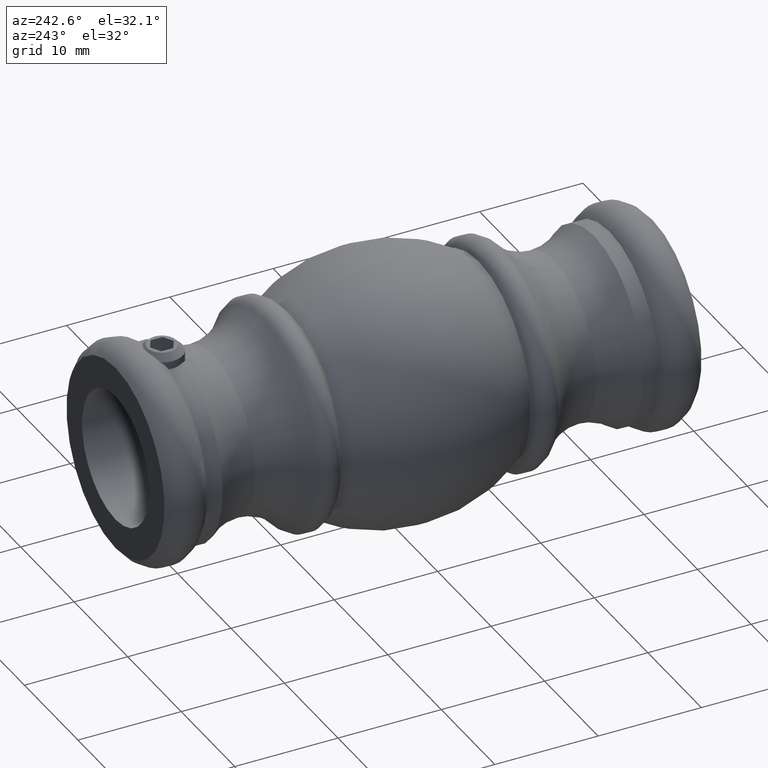
[diagram: clean part render]
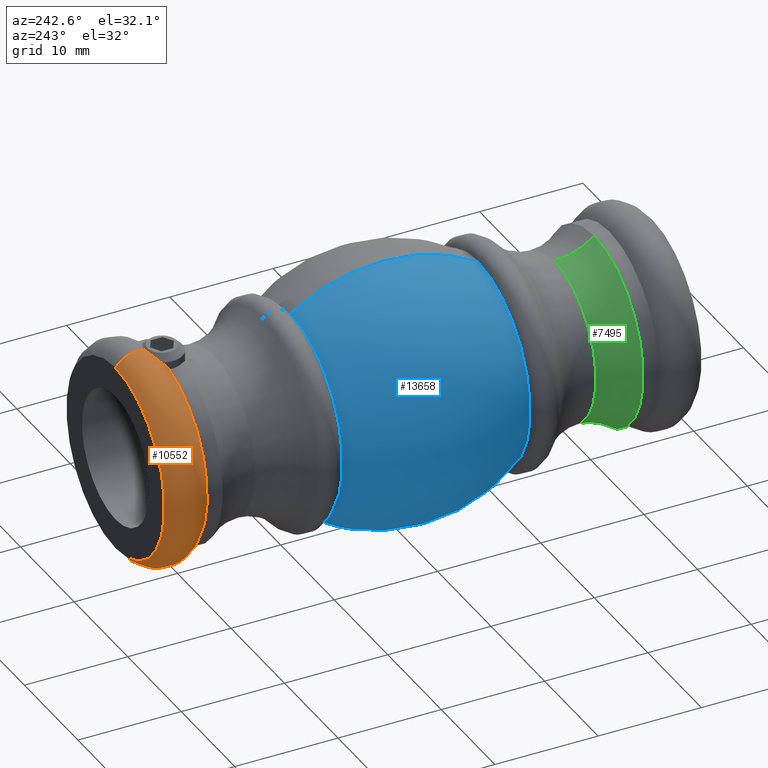
[diagram: same view with three faces highlighted in distinct colors, each labeled with its STEP entity id]
A machine part, auxiliary view with three faces highlighted in distinct colors.
Their STEP definitions:

[orange] entity #10552 — the highlighted toroidal blend (fillet) surface has major radius 7.75 mm and minor (blend) radius 2.5 mm.
#158 = DIRECTION ( 'NONE',  ( -0.000000000000000000, 1.000000000000000000, -0.000000000000000000 ) ) ;
#470 = B_SPLINE_CURVE_WITH_KNOTS ( 'NONE', 3,
 ( #603, #2755, #3880, #558, #6215, #7376, #12888, #8595, #12934, #6313, #13039, #1929 ),
 .UNSPECIFIED., .F., .F.,
 ( 4, 2, 2, 2, 2, 4 ),
 ( 3.657769115314827888E-07, 0.0006481187154108611305, 0.001295871653910190624, 0.001619748123159859762, 0.001943624592409528900, 0.002591377530908866092 ),
 .UNSPECIFIED. ) ;
#558 = CARTESIAN_POINT ( 'NONE',  ( -1.390891976506164252, 22.40268724651248178, 9.640516195403575850 ) ) ;
#603 = CARTESIAN_POINT ( 'NONE',  ( -1.610797106706591375, 21.85753696455840611, 9.007099015833327726 ) ) ;
#952 = CARTESIAN_POINT ( 'NONE',  ( 0.000000000000000000, 23.92876848227920306, 7.750000000000000000 ) ) ;
#1015 = AXIS2_PLACEMENT_3D ( 'NONE', #952, #3144, #3094 ) ;
#1062 = CARTESIAN_POINT ( 'NONE',  ( -4.115869782304869735E-20, 23.14999999999999147, 10.12560932204950959 ) ) ;
#1155 = CIRCLE ( 'NONE', #13123, 9.150000000000000355 ) ;
#1185 = EDGE_CURVE ( 'NONE', #8133, #1998, #9551, .T. ) ;
#1441 = FACE_OUTER_BOUND ( 'NONE', #3279, .T. ) ;
#1522 = EDGE_CURVE ( 'NONE', #10935, #12062, #5928, .T. ) ;
#1929 = CARTESIAN_POINT ( 'NONE',  ( -4.115869782304869735E-20, 23.14999999999999147, 10.12560932204950959 ) ) ;
#1998 = VERTEX_POINT ( 'NONE', #6573 ) ;
#2225 = CARTESIAN_POINT ( 'NONE',  ( 9.491012693391987787E-16, 23.92876848227920306, -7.750000000000000000 ) ) ;
#2755 = CARTESIAN_POINT ( 'NONE',  ( -1.584590059342660950, 21.97560653569011180, 9.189235278742419410 ) ) ;
#3094 = DIRECTION ( 'NONE',  ( 0.000000000000000000, 0.000000000000000000, 1.000000000000000000 ) ) ;
#3144 = DIRECTION ( 'NONE',  ( -1.000000000000000000, 0.000000000000000000, 0.000000000000000000 ) ) ;
#3279 = EDGE_LOOP ( 'NONE', ( #8840, #4939, #3775, #10012, #9299 ) ) ;
#3291 = VERTEX_POINT ( 'NONE', #9532 ) ;
#3348 = DIRECTION ( 'NONE',  ( 1.224646799147353454E-16, 0.000000000000000000, -1.000000000000000000 ) ) ;
#3668 = DIRECTION ( 'NONE',  ( -0.000000000000000000, 1.000000000000000000, -0.000000000000000000 ) ) ;
#3775 = ORIENTED_EDGE ( 'NONE', *, *, #8045, .T. ) ;
#3880 = CARTESIAN_POINT ( 'NONE',  ( -1.541431309632933955, 22.11107632339079387, 9.351865075118666937 ) ) ;
#4167 = AXIS2_PLACEMENT_3D ( 'NONE', #7692, #14370, #4506 ) ;
#4297 = AXIS2_PLACEMENT_3D ( 'NONE', #2225, #14307, #3348 ) ;
#4506 = DIRECTION ( 'NONE',  ( 0.000000000000000000, 0.000000000000000000, 1.000000000000000000 ) ) ;
#4939 = ORIENTED_EDGE ( 'NONE', *, *, #4995, .T. ) ;
#4995 = EDGE_CURVE ( 'NONE', #8133, #3291, #1155, .T. ) ;
#5928 = CIRCLE ( 'NONE', #1015, 2.499999999999998668 ) ;
#6215 = CARTESIAN_POINT ( 'NONE',  ( -1.285069388568652382, 22.55341830163044037, 9.760491960532631239 ) ) ;
#6313 = CARTESIAN_POINT ( 'NONE',  ( -0.4345143387806209567, 23.10587324459420344, 10.10490738233248109 ) ) ;
#6573 = CARTESIAN_POINT ( 'NONE',  ( 1.120551821219828341E-15, 26.00000000000000000, -9.150000000000000355 ) ) ;
#6826 = CARTESIAN_POINT ( 'NONE',  ( 0.000000000000000000, 26.00000000000000000, 0.000000000000000000 ) ) ;
#7376 = CARTESIAN_POINT ( 'NONE',  ( -1.072622760906607464, 22.75762823429526094, 9.902472369373537475 ) ) ;
#7692 = CARTESIAN_POINT ( 'NONE',  ( 0.000000000000000000, 23.92876848227920306, 0.000000000000000000 ) ) ;
#8045 = EDGE_CURVE ( 'NONE', #3291, #10935, #470, .T. ) ;
#8133 = VERTEX_POINT ( 'NONE', #11424 ) ;
#8242 = EDGE_CURVE ( 'NONE', #1998, #12062, #14299, .T. ) ;
#8595 = CARTESIAN_POINT ( 'NONE',  ( -0.8234115222813982449, 22.93353098488181274, 10.01078761576581755 ) ) ;
#8840 = ORIENTED_EDGE ( 'NONE', *, *, #1185, .F. ) ;
#8972 = AXIS2_PLACEMENT_3D ( 'NONE', #6826, #3668, #11515 ) ;
#9299 = ORIENTED_EDGE ( 'NONE', *, *, #8242, .F. ) ;
#9532 = CARTESIAN_POINT ( 'NONE',  ( -1.610797106706591375, 21.85753696455840611, 9.007099015833327726 ) ) ;
#9551 = CIRCLE ( 'NONE', #4297, 2.499999999999998668 ) ;
#9794 = TOROIDAL_SURFACE ( 'NONE', #4167, 7.750000000000000000, 2.499999999999999112 ) ;
#10012 = ORIENTED_EDGE ( 'NONE', *, *, #1522, .T. ) ;
#10342 = CARTESIAN_POINT ( 'NONE',  ( 0.000000000000000000, 26.00000000000000000, 9.150000000000000355 ) ) ;
#10552 = ADVANCED_FACE ( 'NONE', ( #1441 ), #9794, .T. ) ;
#10935 = VERTEX_POINT ( 'NONE', #1062 ) ;
#11364 = CARTESIAN_POINT ( 'NONE',  ( 0.000000000000000000, 21.85753696455840611, 0.000000000000000000 ) ) ;
#11424 = CARTESIAN_POINT ( 'NONE',  ( 1.120551821219828341E-15, 21.85753696455840611, -9.150000000000000355 ) ) ;
#11515 = DIRECTION ( 'NONE',  ( 0.000000000000000000, 0.000000000000000000, 1.000000000000000000 ) ) ;
#12062 = VERTEX_POINT ( 'NONE', #10342 ) ;
#12471 = DIRECTION ( 'NONE',  ( 0.000000000000000000, 0.000000000000000000, 1.000000000000000000 ) ) ;
#12888 = CARTESIAN_POINT ( 'NONE',  ( -0.9945898903956276182, 22.82053344128985017, 9.942574024104409602 ) ) ;
#12934 = CARTESIAN_POINT ( 'NONE',  ( -0.7289692856428927614, 22.98404402821029890, 10.03909488203435885 ) ) ;
#13039 = CARTESIAN_POINT ( 'NONE',  ( -0.2164799268254184728, 23.14999999999998792, 10.12560932204950781 ) ) ;
#13123 = AXIS2_PLACEMENT_3D ( 'NONE', #11364, #158, #12471 ) ;
#14299 = CIRCLE ( 'NONE', #8972, 9.150000000000000355 ) ;
#14307 = DIRECTION ( 'NONE',  ( 1.000000000000000000, 0.000000000000000000, 1.224646799147353207E-16 ) ) ;
#14370 = DIRECTION ( 'NONE',  ( -0.000000000000000000, 1.000000000000000000, -0.000000000000000000 ) ) ;

[blue] entity #13658 — the highlighted toroidal blend (fillet) surface has major radius 3.9734 mm and minor (blend) radius 16.4734 mm.
#71 = AXIS2_PLACEMENT_3D ( 'NONE', #11517, #11563, #4901 ) ;
#523 = CARTESIAN_POINT ( 'NONE',  ( 0.000000000000000000, -9.087668581603962181, 9.766592814193652217 ) ) ;
#1329 = DIRECTION ( 'NONE',  ( -0.000000000000000000, 1.000000000000000000, -0.000000000000000000 ) ) ;
#1349 = EDGE_CURVE ( 'NONE', #5898, #3636, #12756, .T. ) ;
#1383 = CIRCLE ( 'NONE', #71, 16.47343936902745298 ) ;
#1727 = DIRECTION ( 'NONE',  ( 0.000000000000000000, 0.000000000000000000, 1.000000000000000000 ) ) ;
#2021 = ORIENTED_EDGE ( 'NONE', *, *, #1349, .T. ) ;
#2155 = AXIS2_PLACEMENT_3D ( 'NONE', #9588, #7615, #6502 ) ;
#2262 = AXIS2_PLACEMENT_3D ( 'NONE', #9437, #5141, #1727 ) ;
#2323 = CIRCLE ( 'NONE', #2262, 9.766592814193650440 ) ;
#2446 = CARTESIAN_POINT ( 'NONE',  ( 0.000000000000000000, 0.000000000000000000, 0.000000000000000000 ) ) ;
#3158 = VERTEX_POINT ( 'NONE', #3438 ) ;
#3438 = CARTESIAN_POINT ( 'NONE',  ( 0.000000000000000000, 9.087668581603969287, 9.766592814193653993 ) ) ;
#3636 = VERTEX_POINT ( 'NONE', #523 ) ;
#3777 = CARTESIAN_POINT ( 'NONE',  ( 0.000000000000000000, -9.087668581603962181, 0.000000000000000000 ) ) ;
#4507 = ORIENTED_EDGE ( 'NONE', *, *, #7069, .T. ) ;
#4518 = EDGE_LOOP ( 'NONE', ( #10289, #2021, #4507, #10250 ) ) ;
#4901 = DIRECTION ( 'NONE',  ( 1.224646799147353207E-16, 0.000000000000000000, -1.000000000000000000 ) ) ;
#5141 = DIRECTION ( 'NONE',  ( -0.000000000000000000, 1.000000000000000000, -0.000000000000000000 ) ) ;
#5898 = VERTEX_POINT ( 'NONE', #6783 ) ;
#6425 = CARTESIAN_POINT ( 'NONE',  ( 1.196062662847779849E-15, 9.087668581603969287, -9.766592814193653993 ) ) ;
#6502 = DIRECTION ( 'NONE',  ( 0.000000000000000000, 0.000000000000000000, 1.000000000000000000 ) ) ;
#6783 = CARTESIAN_POINT ( 'NONE',  ( 1.196062662847779849E-15, -9.087668581603962181, -9.766592814193652217 ) ) ;
#7069 = EDGE_CURVE ( 'NONE', #3636, #3158, #7912, .T. ) ;
#7615 = DIRECTION ( 'NONE',  ( -1.000000000000000000, 0.000000000000000000, 0.000000000000000000 ) ) ;
#7912 = CIRCLE ( 'NONE', #2155, 16.47343936902745298 ) ;
#8451 = EDGE_CURVE ( 'NONE', #10820, #3158, #2323, .T. ) ;
#9437 = CARTESIAN_POINT ( 'NONE',  ( 0.000000000000000000, 9.087668581603969287, 0.000000000000000000 ) ) ;
#9588 = CARTESIAN_POINT ( 'NONE',  ( 0.000000000000000000, 0.000000000000000000, -3.973439369027452983 ) ) ;
#9928 = FACE_OUTER_BOUND ( 'NONE', #4518, .T. ) ;
#10250 = ORIENTED_EDGE ( 'NONE', *, *, #8451, .F. ) ;
#10289 = ORIENTED_EDGE ( 'NONE', *, *, #13889, .F. ) ;
#10820 = VERTEX_POINT ( 'NONE', #6425 ) ;
#11234 = AXIS2_PLACEMENT_3D ( 'NONE', #3777, #11532, #11582 ) ;
#11330 = DIRECTION ( 'NONE',  ( 0.000000000000000000, 0.000000000000000000, 1.000000000000000000 ) ) ;
#11517 = CARTESIAN_POINT ( 'NONE',  ( -4.866059804885549364E-16, 0.000000000000000000, 3.973439369027452983 ) ) ;
#11532 = DIRECTION ( 'NONE',  ( -0.000000000000000000, 1.000000000000000000, -0.000000000000000000 ) ) ;
#11563 = DIRECTION ( 'NONE',  ( 1.000000000000000000, 0.000000000000000000, 1.224646799147353207E-16 ) ) ;
#11582 = DIRECTION ( 'NONE',  ( 0.000000000000000000, 0.000000000000000000, 1.000000000000000000 ) ) ;
#12063 = AXIS2_PLACEMENT_3D ( 'NONE', #2446, #1329, #11330 ) ;
#12756 = CIRCLE ( 'NONE', #11234, 9.766592814193652217 ) ;
#13658 = ADVANCED_FACE ( 'NONE', ( #9928 ), #13890, .T. ) ;
#13889 = EDGE_CURVE ( 'NONE', #5898, #10820, #1383, .T. ) ;
#13890 = TOROIDAL_SURFACE ( 'NONE', #12063, -3.973439369027452983, 16.47343936902745298 ) ;

[green] entity #7495 — the highlighted toroidal blend (fillet) surface has major radius 13.75 mm and minor (blend) radius 6 mm.
#108 = DIRECTION ( 'NONE',  ( 0.000000000000000000, 0.000000000000000000, 1.000000000000000000 ) ) ;
#1016 = CARTESIAN_POINT ( 'NONE',  ( 1.683889348827610654E-15, -16.50526490770674215, -13.75000000000000000 ) ) ;
#1779 = AXIS2_PLACEMENT_3D ( 'NONE', #9986, #11126, #108 ) ;
#1791 = CARTESIAN_POINT ( 'NONE',  ( 1.120551821219828538E-15, -20.35753696455839190, -9.150000000000002132 ) ) ;
#1795 = VERTEX_POINT ( 'NONE', #12661 ) ;
#2023 = AXIS2_PLACEMENT_3D ( 'NONE', #4152, #7528, #4248 ) ;
#2874 = CARTESIAN_POINT ( 'NONE',  ( 0.000000000000000000, -16.50526490770674215, 0.000000000000000000 ) ) ;
#3756 = VERTEX_POINT ( 'NONE', #9709 ) ;
#3937 = ORIENTED_EDGE ( 'NONE', *, *, #10822, .F. ) ;
#3960 = CIRCLE ( 'NONE', #1779, 9.150000000000002132 ) ;
#4068 = CARTESIAN_POINT ( 'NONE',  ( 0.000000000000000000, -16.50526490770674215, 13.75000000000000000 ) ) ;
#4152 = CARTESIAN_POINT ( 'NONE',  ( 0.000000000000000000, -16.50526490770674215, 0.000000000000000000 ) ) ;
#4248 = DIRECTION ( 'NONE',  ( 0.000000000000000000, 0.000000000000000000, 1.000000000000000000 ) ) ;
#4264 = DIRECTION ( 'NONE',  ( -1.000000000000000000, 0.000000000000000000, 0.000000000000000000 ) ) ;
#4625 = FACE_OUTER_BOUND ( 'NONE', #9520, .T. ) ;
#4823 = EDGE_CURVE ( 'NONE', #10804, #13337, #3960, .T. ) ;
#5126 = DIRECTION ( 'NONE',  ( -0.000000000000000000, 1.000000000000000000, -0.000000000000000000 ) ) ;
#5373 = DIRECTION ( 'NONE',  ( 1.224646799147353454E-16, 0.000000000000000000, -1.000000000000000000 ) ) ;
#5635 = CIRCLE ( 'NONE', #2023, 7.750000000000000000 ) ;
#5733 = ORIENTED_EDGE ( 'NONE', *, *, #6704, .T. ) ;
#5827 = ORIENTED_EDGE ( 'NONE', *, *, #4823, .T. ) ;
#6346 = CIRCLE ( 'NONE', #6636, 6.000000000000000000 ) ;
#6636 = AXIS2_PLACEMENT_3D ( 'NONE', #4068, #4264, #9776 ) ;
#6704 = EDGE_CURVE ( 'NONE', #1795, #10804, #12232, .T. ) ;
#7031 = TOROIDAL_SURFACE ( 'NONE', #11830, 13.75000000000000000, 6.000000000000000000 ) ;
#7184 = CARTESIAN_POINT ( 'NONE',  ( 0.000000000000000000, -20.35753696455839190, 9.150000000000002132 ) ) ;
#7495 = ADVANCED_FACE ( 'NONE', ( #4625 ), #7031, .F. ) ;
#7528 = DIRECTION ( 'NONE',  ( -0.000000000000000000, 1.000000000000000000, -0.000000000000000000 ) ) ;
#7598 = EDGE_CURVE ( 'NONE', #3756, #13337, #6346, .T. ) ;
#8036 = ORIENTED_EDGE ( 'NONE', *, *, #7598, .F. ) ;
#8312 = AXIS2_PLACEMENT_3D ( 'NONE', #1016, #10876, #5373 ) ;
#9520 = EDGE_LOOP ( 'NONE', ( #3937, #5733, #5827, #8036 ) ) ;
#9709 = CARTESIAN_POINT ( 'NONE',  ( 0.000000000000000000, -16.50526490770674215, 7.750000000000000000 ) ) ;
#9776 = DIRECTION ( 'NONE',  ( 0.000000000000000000, 0.000000000000000000, 1.000000000000000000 ) ) ;
#9986 = CARTESIAN_POINT ( 'NONE',  ( 0.000000000000000000, -20.35753696455839190, 0.000000000000000000 ) ) ;
#10804 = VERTEX_POINT ( 'NONE', #1791 ) ;
#10822 = EDGE_CURVE ( 'NONE', #1795, #3756, #5635, .T. ) ;
#10876 = DIRECTION ( 'NONE',  ( 1.000000000000000000, 0.000000000000000000, 1.224646799147353207E-16 ) ) ;
#11126 = DIRECTION ( 'NONE',  ( -0.000000000000000000, 1.000000000000000000, -0.000000000000000000 ) ) ;
#11558 = DIRECTION ( 'NONE',  ( 0.000000000000000000, 0.000000000000000000, 1.000000000000000000 ) ) ;
#11830 = AXIS2_PLACEMENT_3D ( 'NONE', #2874, #5126, #11558 ) ;
#12232 = CIRCLE ( 'NONE', #8312, 6.000000000000000000 ) ;
#12661 = CARTESIAN_POINT ( 'NONE',  ( 9.491012693391985815E-16, -16.50526490770674215, -7.750000000000000000 ) ) ;
#13337 = VERTEX_POINT ( 'NONE', #7184 ) ;